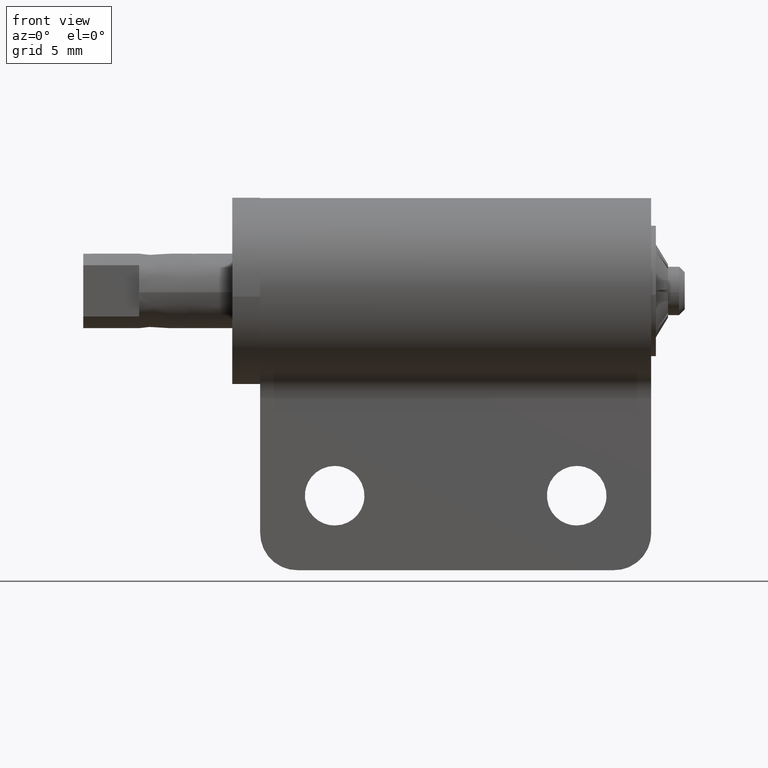
[diagram: clean part render]
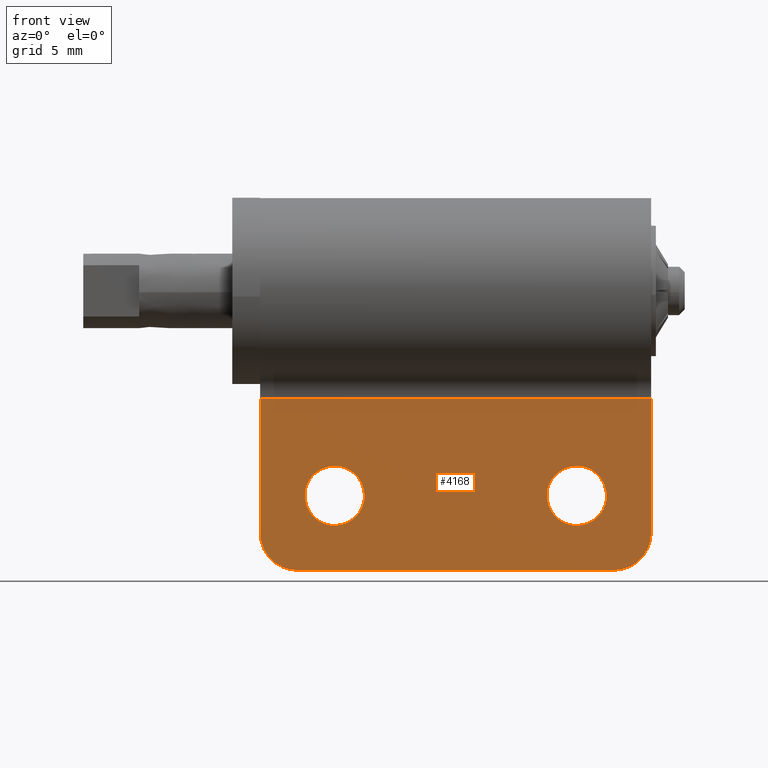
[diagram: same view with one face highlighted and labeled with its STEP entity id]
A machine part, front view. The second image highlights one B-rep face of the part: STEP entity #4168.
In plain terms, the highlighted face is a freeform B-spline surface patch.
Its self-contained STEP definition (entity closure, byte-faithful):
#3455=CARTESIAN_POINT('',(8.911184757823605,-1.499999999999946,-10.811145224503150));
#3456=VERTEX_POINT('',#3455);
#3462=CARTESIAN_POINT('',(10.500000000000000,-1.499999999999946,-12.600000000000000));
#3463=VERTEX_POINT('',#3462);
#3464=CARTESIAN_POINT('',(8.911184757823605,-1.499999999999946,-10.811145224503154));
#3465=CARTESIAN_POINT('',(8.900000000000000,-1.499999999999945,-10.905241408510417));
#3466=CARTESIAN_POINT('',(8.900000000000000,-1.499999999999946,-11.0));
#3467=CARTESIAN_POINT('',(8.900000000000002,-1.499999999999946,-12.599999999999996));
#3468=CARTESIAN_POINT('',(10.500000000000000,-1.499999999999946,-12.600000000000000));
#3476=(BOUNDED_CURVE()B_SPLINE_CURVE(2,(#3464,#3465,#3466,#3467,#3468),.UNSPECIFIED.,.F.,.U.)B_SPLINE_CURVE_WITH_KNOTS((3,2,3),(0.229562473505851,0.250000000000000,0.500000000000000),.UNSPECIFIED.)CURVE()GEOMETRIC_REPRESENTATION_ITEM()RATIONAL_B_SPLINE_CURVE((0.956026754168690,0.976055948322173,1.0,0.707106781186548,1.0))REPRESENTATION_ITEM(''));
#3477=EDGE_CURVE('',#3456,#3463,#3476,.T.);
#3479=CARTESIAN_POINT('',(12.097015677473660,-1.499999999999946,-11.097677663277491));
#3480=VERTEX_POINT('',#3479);
#3481=CARTESIAN_POINT('',(10.500000000000000,-1.499999999999946,-12.600000000000000));
#3482=CARTESIAN_POINT('',(12.005129707008097,-1.499999999999946,-12.599999999999996));
#3483=CARTESIAN_POINT('',(12.097015677473667,-1.499999999999946,-11.097677663277484));
#3491=(BOUNDED_CURVE()B_SPLINE_CURVE(2,(#3481,#3482,#3483),.UNSPECIFIED.,.F.,.U.)B_SPLINE_CURVE_WITH_KNOTS((3,3),(0.500000000000000,0.739332962237275),.UNSPECIFIED.)CURVE()GEOMETRIC_REPRESENTATION_ITEM()RATIONAL_B_SPLINE_CURVE((1.0,0.719603993288664,0.976072041663144))REPRESENTATION_ITEM(''));
#3492=EDGE_CURVE('',#3463,#3480,#3491,.T.);
#3566=CARTESIAN_POINT('',(10.500000000000000,-1.499999999999946,-9.399999999999999));
#3567=VERTEX_POINT('',#3566);
#3568=CARTESIAN_POINT('',(12.097015677473660,-1.499999999999946,-11.097677663277487));
#3569=CARTESIAN_POINT('',(12.099999999999996,-1.499999999999946,-11.048884421299519));
#3570=CARTESIAN_POINT('',(12.100000000000000,-1.499999999999946,-11.0));
#3571=CARTESIAN_POINT('',(12.099999999999998,-1.499999999999946,-9.399999999999999));
#3572=CARTESIAN_POINT('',(10.500000000000000,-1.499999999999946,-9.399999999999999));
#3580=(BOUNDED_CURVE()B_SPLINE_CURVE(2,(#3568,#3569,#3570,#3571,#3572),.UNSPECIFIED.,.F.,.U.)B_SPLINE_CURVE_WITH_KNOTS((3,2,3),(0.739332962237276,0.750000000000000,1.0),.UNSPECIFIED.)CURVE()GEOMETRIC_REPRESENTATION_ITEM()RATIONAL_B_SPLINE_CURVE((0.976072041663145,0.987502787897884,1.0,0.707106781186548,1.0))REPRESENTATION_ITEM(''));
#3581=EDGE_CURVE('',#3480,#3567,#3580,.T.);
#3583=CARTESIAN_POINT('',(10.500000000000000,-1.499999999999946,-9.399999999999999));
#3584=CARTESIAN_POINT('',(9.078920758560745,-1.499999999999946,-9.399999999999999));
#3585=CARTESIAN_POINT('',(8.911184757823605,-1.499999999999946,-10.811145224503155));
#3593=(BOUNDED_CURVE()B_SPLINE_CURVE(2,(#3583,#3584,#3585),.UNSPECIFIED.,.F.,.U.)B_SPLINE_CURVE_WITH_KNOTS((3,3),(0.0,0.229562473505850),.UNSPECIFIED.)CURVE()GEOMETRIC_REPRESENTATION_ITEM()RATIONAL_B_SPLINE_CURVE((1.0,0.731050832864374,0.956026754168690))REPRESENTATION_ITEM(''));
#3594=EDGE_CURVE('',#3567,#3456,#3593,.T.);
#3641=CARTESIAN_POINT('',(21.911184757823609,-1.499999999999946,-10.811145224503150));
#3642=VERTEX_POINT('',#3641);
#3648=CARTESIAN_POINT('',(23.500000000000000,-1.499999999999946,-12.600000000000000));
#3649=VERTEX_POINT('',#3648);
#3650=CARTESIAN_POINT('',(21.911184757823605,-1.499999999999946,-10.811145224503147));
#3651=CARTESIAN_POINT('',(21.899999999999999,-1.499999999999946,-10.905241408510420));
#3652=CARTESIAN_POINT('',(21.899999999999999,-1.499999999999946,-11.0));
#3653=CARTESIAN_POINT('',(21.899999999999999,-1.499999999999946,-12.599999999999996));
#3654=CARTESIAN_POINT('',(23.500000000000000,-1.499999999999946,-12.600000000000000));
#3662=(BOUNDED_CURVE()B_SPLINE_CURVE(2,(#3650,#3651,#3652,#3653,#3654),.UNSPECIFIED.,.F.,.U.)B_SPLINE_CURVE_WITH_KNOTS((3,2,3),(0.229562473505850,0.250000000000000,0.500000000000000),.UNSPECIFIED.)CURVE()GEOMETRIC_REPRESENTATION_ITEM()RATIONAL_B_SPLINE_CURVE((0.956026754168689,0.976055948322173,1.0,0.707106781186548,1.0))REPRESENTATION_ITEM(''));
#3663=EDGE_CURVE('',#3642,#3649,#3662,.T.);
#3665=CARTESIAN_POINT('',(25.097015677473660,-1.499999999999946,-11.097677663277491));
#3666=VERTEX_POINT('',#3665);
#3667=CARTESIAN_POINT('',(23.500000000000000,-1.499999999999946,-12.600000000000000));
#3668=CARTESIAN_POINT('',(25.005129707008106,-1.499999999999946,-12.599999999999996));
#3669=CARTESIAN_POINT('',(25.097015677473657,-1.499999999999946,-11.097677663277484));
#3677=(BOUNDED_CURVE()B_SPLINE_CURVE(2,(#3667,#3668,#3669),.UNSPECIFIED.,.F.,.U.)B_SPLINE_CURVE_WITH_KNOTS((3,3),(0.500000000000000,0.739332962237275),.UNSPECIFIED.)CURVE()GEOMETRIC_REPRESENTATION_ITEM()RATIONAL_B_SPLINE_CURVE((1.0,0.719603993288664,0.976072041663144))REPRESENTATION_ITEM(''));
#3678=EDGE_CURVE('',#3649,#3666,#3677,.T.);
#3752=CARTESIAN_POINT('',(23.500000000000000,-1.499999999999946,-9.399999999999999));
#3753=VERTEX_POINT('',#3752);
#3754=CARTESIAN_POINT('',(25.097015677473657,-1.499999999999946,-11.097677663277491));
#3755=CARTESIAN_POINT('',(25.100000000000005,-1.499999999999946,-11.048884421299523));
#3756=CARTESIAN_POINT('',(25.100000000000001,-1.499999999999946,-11.0));
#3757=CARTESIAN_POINT('',(25.099999999999994,-1.499999999999946,-9.399999999999999));
#3758=CARTESIAN_POINT('',(23.500000000000000,-1.499999999999946,-9.399999999999999));
#3766=(BOUNDED_CURVE()B_SPLINE_CURVE(2,(#3754,#3755,#3756,#3757,#3758),.UNSPECIFIED.,.F.,.U.)B_SPLINE_CURVE_WITH_KNOTS((3,2,3),(0.739332962237276,0.750000000000000,1.0),.UNSPECIFIED.)CURVE()GEOMETRIC_REPRESENTATION_ITEM()RATIONAL_B_SPLINE_CURVE((0.976072041663145,0.987502787897884,1.0,0.707106781186548,1.0))REPRESENTATION_ITEM(''));
#3767=EDGE_CURVE('',#3666,#3753,#3766,.T.);
#3769=CARTESIAN_POINT('',(23.500000000000000,-1.499999999999946,-9.399999999999999));
#3770=CARTESIAN_POINT('',(22.078920758560745,-1.499999999999946,-9.399999999999999));
#3771=CARTESIAN_POINT('',(21.911184757823605,-1.499999999999946,-10.811145224503147));
#3779=(BOUNDED_CURVE()B_SPLINE_CURVE(2,(#3769,#3770,#3771),.UNSPECIFIED.,.F.,.U.)B_SPLINE_CURVE_WITH_KNOTS((3,3),(0.0,0.229562473505850),.UNSPECIFIED.)CURVE()GEOMETRIC_REPRESENTATION_ITEM()RATIONAL_B_SPLINE_CURVE((1.0,0.731050832864374,0.956026754168689))REPRESENTATION_ITEM(''));
#3780=EDGE_CURVE('',#3753,#3642,#3779,.T.);
#3800=CARTESIAN_POINT('',(6.500000000000000,-1.500000000000000,-13.0));
#3801=VERTEX_POINT('',#3800);
#3802=CARTESIAN_POINT('',(8.500000000000000,-1.500000000000000,-15.0));
#3803=VERTEX_POINT('',#3802);
#3804=CARTESIAN_POINT('',(6.500000000000001,-1.500000000000000,-13.0));
#3805=CARTESIAN_POINT('',(6.500000000000003,-1.500000000000000,-14.999999999999995));
#3806=CARTESIAN_POINT('',(8.500000000000000,-1.500000000000000,-15.0));
#3814=(BOUNDED_CURVE()B_SPLINE_CURVE(2,(#3804,#3805,#3806),.UNSPECIFIED.,.F.,.U.)CURVE()GEOMETRIC_REPRESENTATION_ITEM()QUASI_UNIFORM_CURVE()RATIONAL_B_SPLINE_CURVE((1.0,0.707106781186548,1.0))REPRESENTATION_ITEM(''));
#3815=EDGE_CURVE('',#3801,#3803,#3814,.T.);
#3861=CARTESIAN_POINT('',(25.500000000000000,-1.500000000000000,-15.0));
#3862=VERTEX_POINT('',#3861);
#3863=CARTESIAN_POINT('',(27.500000000000000,-1.500000000000000,-13.0));
#3864=VERTEX_POINT('',#3863);
#3865=CARTESIAN_POINT('',(25.500000000000000,-1.500000000000000,-15.0));
#3866=CARTESIAN_POINT('',(27.500000000000004,-1.500000000000000,-14.999999999999995));
#3867=CARTESIAN_POINT('',(27.500000000000000,-1.500000000000000,-13.0));
#3875=(BOUNDED_CURVE()B_SPLINE_CURVE(2,(#3865,#3866,#3867),.UNSPECIFIED.,.F.,.U.)CURVE()GEOMETRIC_REPRESENTATION_ITEM()QUASI_UNIFORM_CURVE()RATIONAL_B_SPLINE_CURVE((1.0,0.707106781186548,1.0))REPRESENTATION_ITEM(''));
#3876=EDGE_CURVE('',#3862,#3864,#3875,.T.);
#3913=CARTESIAN_POINT('',(27.500000000000000,-1.500000000000000,-5.766281000000000));
#3914=VERTEX_POINT('',#3913);
#3915=CARTESIAN_POINT('',(27.500000000000000,-1.500000000000000,-5.766281000000000));
#3916=CARTESIAN_POINT('',(27.500000000000000,-1.500000000000000,-13.0));
#3917=QUASI_UNIFORM_CURVE('',1,(#3915,#3916),.UNSPECIFIED.,.F.,.U.);
#3918=EDGE_CURVE('',#3914,#3864,#3917,.T.);
#3999=CARTESIAN_POINT('',(6.500000000000000,-1.500000000000000,-5.766281000000000));
#4000=VERTEX_POINT('',#3999);
#4001=CARTESIAN_POINT('',(6.500000000000000,-1.500000000000000,-5.766281000000000));
#4002=CARTESIAN_POINT('',(6.500000000000000,-1.500000000000000,-13.0));
#4003=QUASI_UNIFORM_CURVE('',1,(#4001,#4002),.UNSPECIFIED.,.F.,.U.);
#4004=EDGE_CURVE('',#4000,#3801,#4003,.T.);
#4130=CARTESIAN_POINT('',(8.500000000000000,-1.500000000000000,-15.0));
#4131=CARTESIAN_POINT('',(25.500000000000000,-1.500000000000000,-15.0));
#4132=QUASI_UNIFORM_CURVE('',1,(#4130,#4131),.UNSPECIFIED.,.F.,.U.);
#4133=EDGE_CURVE('',#3803,#3862,#4132,.T.);
#4139=CARTESIAN_POINT('',(5.451050040702075,-1.500000000000000,-5.305056840526287));
#4140=CARTESIAN_POINT('',(5.451050040702075,-1.500000000000000,-15.461224489697241));
#4141=CARTESIAN_POINT('',(28.548950522561821,-1.500000000000000,-5.305056840526287));
#4142=CARTESIAN_POINT('',(28.548950522561821,-1.500000000000000,-15.461224489697241));
#4143=B_SPLINE_SURFACE_WITH_KNOTS('',1,1,((#4139,#4141),(#4140,#4142)),.UNSPECIFIED.,.F.,.F.,.U.,(2,2),(2,2),(0.0,10.156167649170950),(0.0,23.097900481859739),.UNSPECIFIED.);
#4144=ORIENTED_EDGE('',*,*,#4133,.T.);
#4145=ORIENTED_EDGE('',*,*,#3876,.T.);
#4146=ORIENTED_EDGE('',*,*,#3918,.F.);
#4147=CARTESIAN_POINT('',(6.500000000000000,-1.500000000000000,-5.766281000000000));
#4148=CARTESIAN_POINT('',(27.500000000000000,-1.500000000000000,-5.766281000000000));
#4149=QUASI_UNIFORM_CURVE('',1,(#4147,#4148),.UNSPECIFIED.,.F.,.U.);
#4150=EDGE_CURVE('',#4000,#3914,#4149,.T.);
#4151=ORIENTED_EDGE('',*,*,#4150,.F.);
#4152=ORIENTED_EDGE('',*,*,#4004,.T.);
#4153=ORIENTED_EDGE('',*,*,#3815,.T.);
#4154=EDGE_LOOP('',(#4144,#4145,#4146,#4151,#4152,#4153));
#4155=FACE_OUTER_BOUND('',#4154,.T.);
#4156=ORIENTED_EDGE('',*,*,#3678,.F.);
#4157=ORIENTED_EDGE('',*,*,#3663,.F.);
#4158=ORIENTED_EDGE('',*,*,#3780,.F.);
#4159=ORIENTED_EDGE('',*,*,#3767,.F.);
#4160=EDGE_LOOP('',(#4156,#4157,#4158,#4159));
#4161=FACE_BOUND('',#4160,.T.);
#4162=ORIENTED_EDGE('',*,*,#3492,.F.);
#4163=ORIENTED_EDGE('',*,*,#3477,.F.);
#4164=ORIENTED_EDGE('',*,*,#3594,.F.);
#4165=ORIENTED_EDGE('',*,*,#3581,.F.);
#4166=EDGE_LOOP('',(#4162,#4163,#4164,#4165));
#4167=FACE_BOUND('',#4166,.T.);
#4168=ADVANCED_FACE('',(#4155,#4161,#4167),#4143,.T.);